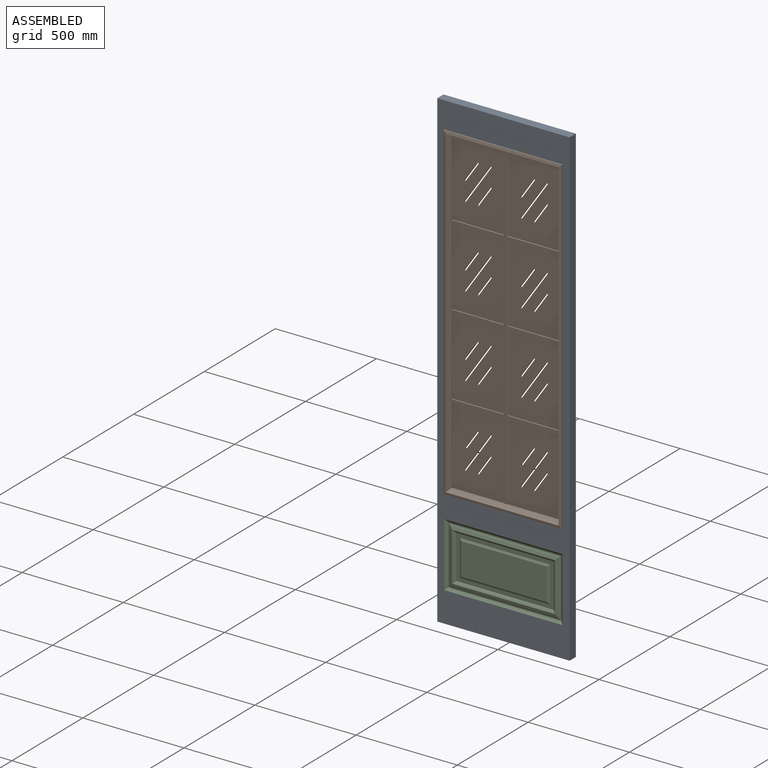
[diagram: assembled view]
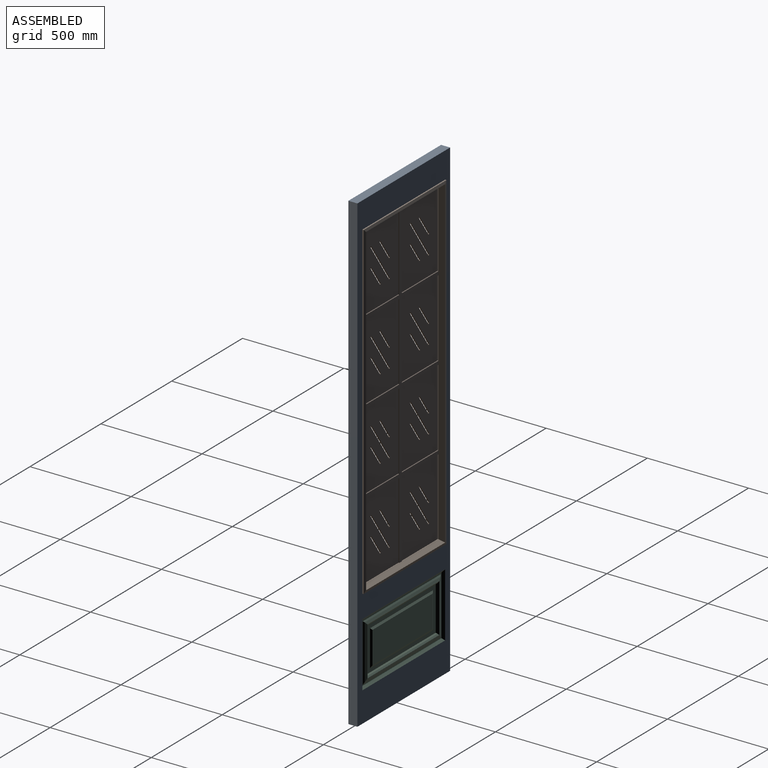
[diagram: assembled view, second angle]
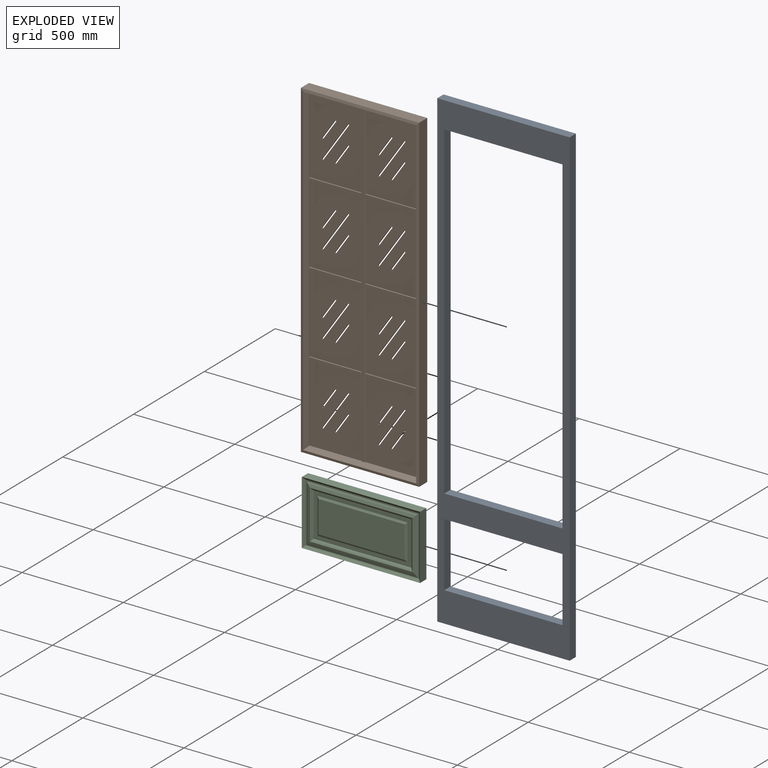
[diagram: exploded view]
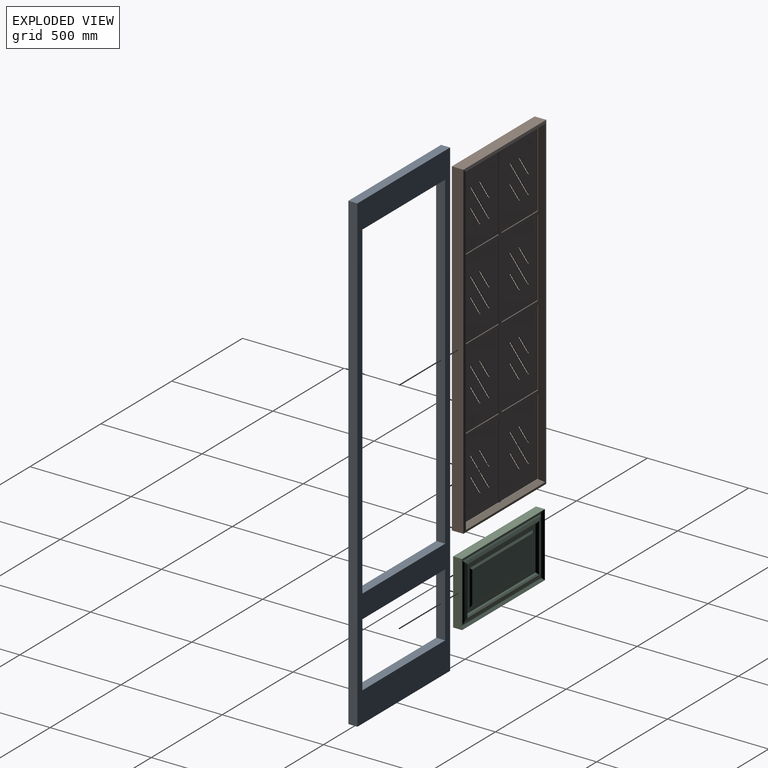
[diagram: exploded view, second angle]
ASSEMBLY  parts=3 mates=2
PART A: 14 faces, bbox 654.1x44.5x2336.8 mm
  f0: plane 2336.8x44.45mm, normal (1,0,0), area 103870.8mm2, adj f1,f11,f12,f13
  f1: plane 654.05x44.45mm, normal (0,0,1), area 29072.5mm2, adj f0,f10,f11,f12
  f2: plane 584.2x44.45mm, normal (0,0,1), area 25967.7mm2, adj f3,f8,f11,f12
  f3: plane 317.5x44.45mm, normal (1,0,0), area 14112.9mm2, adj f2,f4,f11,f12
  f4: plane 584.2x44.45mm, normal (0,0,-1), area 25967.7mm2, adj f3,f8,f11,f12
  f5: plane 584.2x44.45mm, normal (0,0,1), area 25967.7mm2, adj f6,f9,f11,f12
  f6: plane 1625.6x44.45mm, normal (1,0,0), area 72257.9mm2, adj f5,f7,f11,f12
  f7: plane 584.2x44.45mm, normal (0,0,-1), area 25967.7mm2, adj f6,f9,f11,f12
  f8: plane 317.5x44.45mm, normal (-1,0,0), area 14112.9mm2, adj f2,f4,f11,f12
  f9: plane 1625.6x44.45mm, normal (-1,0,0), area 72257.9mm2, adj f5,f7,f11,f12
  f10: plane 2336.8x44.45mm, normal (-1,0,0), area 103870.8mm2, adj f1,f11,f12,f13
  f11: plane 2336.8x654.05mm, normal (0,-1,0), area 393225mm2, adj f0,f1,f2,f3,f4,f5,f6,f7
  f12: plane 2336.8x654.05mm, normal (0,1,0), area 393225mm2, adj f0,f1,f2,f3,f4,f5,f6,f7
  f13: plane 654.05x44.45mm, normal (0,0,-1), area 29072.5mm2, adj f0,f10,f11,f12
PART B: 198 faces, bbox 584.2x63.5x1625.6 mm
  f0: plane 378.32x255.83mm, normal (0,-1,0), area 93800.9mm2, adj f17,f18,f90,f95,f138,f139,f140,f141
  f1: plane 378.32x255.56mm, normal (0,-1,0), area 93671.5mm2, adj f16,f19,f93,f99,f162,f163,f164,f165
  f2: plane 376.48x255.42mm, normal (0,1,0), area 93151.6mm2, adj f20,f22,f46,f100,f174,f175,f176,f177
  f3: plane 376.48x255.83mm, normal (0,1,0), area 93331.9mm2, adj f21,f23,f64,f97,f186,f187,f188,f189
  f4: plane 378.32x255.83mm, normal (0,-1,0), area 93800.9mm2, adj f26,f28,f81,f91,f126,f127,f128,f129
  f5: plane 376.48x255.83mm, normal (0,-1,0), area 93331.9mm2, adj f27,f29,f44,f94,f186,f187,f188,f189
  f6: plane 378.32x255.69mm, normal (0,-1,0), area 93723.4mm2, adj f24,f30,f78,f92,f150,f151,f152,f153
  f7: plane 376.48x255.42mm, normal (0,-1,0), area 93151.6mm2, adj f25,f31,f48,f98,f174,f175,f176,f177
  f8: plane 378.32x255.56mm, normal (0,1,0), area 93671.5mm2, adj f32,f36,f88,f101,f162,f163,f164,f165
  f9: plane 378.32x255.69mm, normal (0,1,0), area 93723.4mm2, adj f33,f37,f85,f89,f150,f151,f152,f153
  f10: plane 378.32x255.83mm, normal (0,1,0), area 93800.9mm2, adj f34,f38,f87,f96,f138,f139,f140,f141
  f11: plane 378.32x255.83mm, normal (0,1,0), area 93800.9mm2, adj f35,f39,f83,f86,f126,f127,f128,f129
  f12: plane 376.48x255.83mm, normal (0,1,0), area 93306.4mm2, adj f40,f42,f47,f84,f102,f103,f104,f105
  f13: plane 376.48x255.83mm, normal (0,1,0), area 93331.9mm2, adj f41,f43,f71,f82,f114,f115,f116,f117
  f14: plane 376.48x255.83mm, normal (0,-1,0), area 93331.9mm2, adj f45,f50,f75,f80,f114,f115,f116,f117
  f15: plane 376.48x255.83mm, normal (0,-1,0), area 93306.4mm2, adj f49,f51,f76,f79,f102,f103,f104,f105
  f16: plane 381.98x3.18mm, normal (1,0,0), area 1207mm2, adj f1,f68,f93,f99
  f17: plane 381.98x3.18mm, normal (-1,0,0), area 1207mm2, adj f0,f70,f90,f95
  f18: plane 381.98x3.18mm, normal (0.87,-0.5,0), area 1393.7mm2, adj f0,f77,f90,f95
  f19: plane 381.98x3.18mm, normal (-0.87,-0.5,0), area 1393.7mm2, adj f1,f77,f93,f99
  f20: plane 378.32x3.18mm, normal (1,0,0), area 1198.2mm2, adj f2,f46,f67,f100
  f21: plane 378.32x3.18mm, normal (-1,0,0), area 1198.2mm2, adj f3,f64,f69,f97
  f22: plane 378.32x3.18mm, normal (-0.87,0.5,0), area 1383.6mm2, adj f2,f46,f74,f100
  f23: plane 378.32x3.18mm, normal (0.87,0.5,0), area 1383.6mm2, adj f3,f64,f74,f97
  f24: plane 381.98x3.18mm, normal (1,0,0), area 1207mm2, adj f6,f68,f78,f92
  f25: plane 378.32x3.18mm, normal (1,0,0), area 1198.2mm2, adj f7,f48,f68,f98
  f26: plane 381.98x3.18mm, normal (-1,0,0), area 1207mm2, adj f4,f70,f81,f91
  f27: plane 378.32x3.18mm, normal (-1,0,0), area 1198.2mm2, adj f5,f44,f70,f94
  f28: plane 381.98x3.18mm, normal (0.87,-0.5,0), area 1393.7mm2, adj f4,f77,f81,f91
  f29: plane 378.32x3.18mm, normal (0.87,-0.5,0), area 1383.6mm2, adj f5,f44,f77,f94
  f30: plane 381.98x3.18mm, normal (-0.87,-0.5,0), area 1393.7mm2, adj f6,f77,f78,f92
  f31: plane 378.32x3.18mm, normal (-0.87,-0.5,0), area 1383.6mm2, adj f7,f48,f77,f98
  f32: plane 381.98x3.18mm, normal (1,0,0), area 1207mm2, adj f8,f67,f88,f101
  f33: plane 381.98x3.18mm, normal (1,0,0), area 1207mm2, adj f9,f67,f85,f89
  f34: plane 381.98x3.18mm, normal (-1,0,0), area 1207mm2, adj f10,f69,f87,f96
  f35: plane 381.98x3.18mm, normal (-1,0,0), area 1207mm2, adj f11,f69,f83,f86
  f36: plane 381.98x3.18mm, normal (-0.87,0.5,0), area 1393.7mm2, adj f8,f74,f88,f101
  f37: plane 381.98x3.18mm, normal (-0.87,0.5,0), area 1393.7mm2, adj f9,f74,f85,f89
  f38: plane 381.98x3.18mm, normal (0.87,0.5,0), area 1393.7mm2, adj f10,f74,f87,f96
  f39: plane 381.98x3.18mm, normal (0.87,0.5,0), area 1393.7mm2, adj f11,f74,f83,f86
  f40: plane 378.32x3.18mm, normal (1,0,0), area 1198.2mm2, adj f12,f47,f67,f84
  f41: plane 378.32x3.18mm, normal (-1,0,0), area 1198.2mm2, adj f13,f69,f71,f82
  f42: plane 378.32x3.18mm, normal (-0.87,0.5,0), area 1383.6mm2, adj f12,f47,f74,f84
  f43: plane 378.32x3.18mm, normal (0.87,0.5,0), area 1383.6mm2, adj f13,f71,f74,f82
  f44: plane 257.67x3.18mm, normal (0,0,-1), area 815.2mm2, adj f5,f27,f29,f65
  f45: plane 257.67x3.18mm, normal (0,0,1), area 815.2mm2, adj f14,f50,f73,f75
  f46: plane 257.12x3.18mm, normal (0,0,-1), area 813.5mm2, adj f2,f20,f22,f66
  f47: plane 257.66x3.18mm, normal (0,0,1), area 815.2mm2, adj f12,f40,f42,f72
  f48: plane 257.12x3.18mm, normal (0,0,-1), area 813.5mm2, adj f7,f25,f31,f65
  f49: plane 378.32x3.18mm, normal (1,0,0), area 1198.2mm2, adj f15,f51,f68,f79
  f50: plane 378.32x3.18mm, normal (-1,0,0), area 1198.2mm2, adj f14,f45,f70,f80
  f51: plane 257.66x3.18mm, normal (0,0,1), area 815.2mm2, adj f15,f49,f73,f76
  f52: plane 584.2x57.15mm, normal (0,0,1), area 33387mm2, adj f53,f54,f55,f58
  f53: plane 584.2x12.7mm, normal (0,-0.97,0.24), area 7481.4mm2, adj f52,f56,f59,f65
  f54: plane 584.2x12.7mm, normal (0,0.97,0.24), area 7481.4mm2, adj f52,f57,f60,f66
  f55: plane 1625.6x57.15mm, normal (-1,0,0), area 92903mm2, adj f52,f56,f57,f61
  f56: plane 1625.6x12.7mm, normal (-0.24,-0.97,0), area 21114.2mm2, adj f53,f55,f62,f68
  f57: plane 1625.6x12.7mm, normal (-0.24,0.97,0), area 21114.2mm2, adj f54,f55,f63,f67
  f58: plane 1625.6x57.15mm, normal (1,0,0), area 92903mm2, adj f52,f59,f60,f61
  f59: plane 1625.6x12.7mm, normal (0.24,-0.97,0), area 21114.2mm2, adj f53,f58,f62,f70
  f60: plane 1625.6x12.7mm, normal (0.24,0.97,0), area 21114.2mm2, adj f54,f58,f63,f69
  f61: plane 584.2x57.15mm, normal (0,0,-1), area 33387mm2, adj f55,f58,f62,f63
  f62: plane 584.2x12.7mm, normal (0,-0.97,-0.24), area 7481.4mm2, adj f56,f59,f61,f73
  f63: plane 584.2x12.7mm, normal (0,0.97,-0.24), area 7481.4mm2, adj f57,f60,f61,f72
  f64: plane 257.67x3.18mm, normal (0,0,-1), area 815.2mm2, adj f3,f21,f23,f66
  f65: plane 558.8x25.4mm, normal (0,-0.45,-0.89), area 15508.2mm2, adj f44,f48,f53,f68,f70,f77
  f66: plane 558.8x25.4mm, normal (0,0.45,-0.89), area 15508.2mm2, adj f46,f54,f64,f67,f69,f74
  f67: plane 1600.2x25.4mm, normal (0.89,0.45,0), area 45081.9mm2, adj f20,f32,f33,f40,f57,f66,f72,f74
  f68: plane 1600.2x25.4mm, normal (0.89,-0.45,0), area 45081.9mm2, adj f16,f24,f25,f49,f56,f65,f73,f77
  f69: plane 1600.2x25.4mm, normal (-0.89,0.45,0), area 45081.9mm2, adj f21,f34,f35,f41,f60,f66,f72,f74
  f70: plane 1600.2x25.4mm, normal (-0.89,-0.45,0), area 45081.9mm2, adj f17,f26,f27,f50,f59,f65,f73,f77
  f71: plane 257.67x3.18mm, normal (0,0,1), area 815.2mm2, adj f13,f41,f43,f72
  f72: plane 558.8x25.4mm, normal (0,0.45,0.89), area 15508.2mm2, adj f47,f63,f67,f69,f71,f74
  f73: plane 558.8x25.4mm, normal (0,-0.45,0.89), area 15508.2mm2, adj f45,f51,f62,f68,f70,f77
  f74: plane 1574.8x533.4mm, normal (0,1,0), area 56801mm2, adj f22,f23,f36,f37,f38,f39,f42,f43
  f75: plane 378.32x3.18mm, normal (0.87,-0.5,0), area 1383.6mm2, adj f14,f45,f77,f80
  f76: plane 378.32x3.18mm, normal (-0.87,-0.5,0), area 1383.6mm2, adj f15,f51,f77,f79
  f77: plane 1574.8x533.4mm, normal (0,-1,0), area 56801mm2, adj f18,f19,f28,f29,f30,f31,f65,f68
  f78: plane 257.53x3.18mm, normal (0,-0.5,0.87), area 940.8mm2, adj f6,f24,f30,f77
  f79: plane 257.53x3.18mm, normal (0,-0.5,-0.87), area 940.8mm2, adj f15,f49,f76,f77
  f80: plane 257.67x3.18mm, normal (0,-0.5,-0.87), area 941.3mm2, adj f14,f50,f75,f77
  f81: plane 257.67x3.18mm, normal (0,-0.5,0.87), area 941.3mm2, adj f4,f26,f28,f77
  f82: plane 257.67x3.18mm, normal (0,0.5,-0.87), area 941.3mm2, adj f13,f41,f43,f74
  f83: plane 257.67x3.18mm, normal (0,0.5,0.87), area 941.3mm2, adj f11,f35,f39,f74
  f84: plane 257.53x3.18mm, normal (0,0.5,-0.87), area 940.8mm2, adj f12,f40,f42,f74
  f85: plane 257.53x3.18mm, normal (0,0.5,0.87), area 940.8mm2, adj f9,f33,f37,f74
  f86: plane 257.67x3.18mm, normal (0,0.5,-0.87), area 941.3mm2, adj f11,f35,f39,f74
  f87: plane 257.67x3.18mm, normal (0,0.5,0.87), area 941.3mm2, adj f10,f34,f38,f74
  f88: plane 257.39x3.18mm, normal (0,0.5,0.87), area 940.3mm2, adj f8,f32,f36,f74
  f89: plane 257.4x3.18mm, normal (0,0.5,-0.87), area 940.3mm2, adj f9,f33,f37,f74
  f90: plane 257.67x3.18mm, normal (0,-0.5,0.87), area 941.3mm2, adj f0,f17,f18,f77
  f91: plane 257.67x3.18mm, normal (0,-0.5,-0.87), area 941.3mm2, adj f4,f26,f28,f77
  f92: plane 257.4x3.18mm, normal (0,-0.5,-0.87), area 940.3mm2, adj f6,f24,f30,f77
  f93: plane 257.39x3.18mm, normal (0,-0.5,0.87), area 940.3mm2, adj f1,f16,f19,f77
  f94: plane 257.67x3.18mm, normal (0,-0.5,0.87), area 941.3mm2, adj f5,f27,f29,f77
  f95: plane 257.67x3.18mm, normal (0,-0.5,-0.87), area 941.3mm2, adj f0,f17,f18,f77
  f96: plane 257.67x3.18mm, normal (0,0.5,-0.87), area 941.3mm2, adj f10,f34,f38,f74
  f97: plane 257.67x3.18mm, normal (0,0.5,0.87), area 941.3mm2, adj f3,f21,f23,f74
  f98: plane 257.25x3.18mm, normal (0,-0.5,0.87), area 939.8mm2, adj f7,f25,f31,f77
  f99: plane 257.26x3.18mm, normal (0,-0.5,-0.87), area 939.8mm2, adj f1,f16,f19,f77
  f100: plane 257.25x3.18mm, normal (0,0.5,0.87), area 939.8mm2, adj f2,f20,f22,f74
  f101: plane 257.26x3.18mm, normal (0,0.5,-0.87), area 939.8mm2, adj f8,f32,f36,f74
  f102: cylinder r=3.17mm len=6.35mm, axis (0,-1,0), area 63.3mm2, adj f12,f15,f103,f105
  f103: plane 94.12x63.93mm, normal (-0.83,0,0.56), area 722.5mm2, adj f12,f15,f102,f104
  f104: cylinder r=3.17mm len=6.35mm, axis (0,-1,0), area 63.3mm2, adj f12,f15,f103,f105
  f105: plane 94.12x63.93mm, normal (0.83,0,-0.56), area 722.5mm2, adj f12,f15,f102,f104
  f106: cylinder r=3.17mm len=6.35mm, axis (0,-1,0), area 63.3mm2, adj f12,f15,f107,f109
  f107: plane 94.12x63.93mm, normal (-0.83,0,0.56), area 722.5mm2, adj f12,f15,f106,f108
  f108: cylinder r=3.17mm len=6.35mm, axis (0,-1,0), area 63.3mm2, adj f12,f15,f107,f109
  f109: plane 94.12x63.93mm, normal (0.83,0,-0.56), area 722.5mm2, adj f12,f15,f106,f108
  f110: cylinder r=3.17mm len=6.35mm, axis (0,-1,0), area 63.3mm2, adj f12,f15,f111,f113
  f111: plane 188.24x127.85mm, normal (-0.83,0,0.56), area 1445mm2, adj f12,f15,f110,f112
  f112: cylinder r=3.17mm len=6.35mm, axis (0,-1,0), area 63.3mm2, adj f12,f15,f111,f113
  f113: plane 188.24x127.85mm, normal (0.83,0,-0.56), area 1445mm2, adj f12,f15,f110,f112
  f114: cylinder r=3.17mm len=6.35mm, axis (0,-1,0), area 63.3mm2, adj f13,f14,f115,f117
  f115: plane 188.24x127.85mm, normal (0.83,0,-0.56), area 1445mm2, adj f13,f14,f114,f116
  f116: cylinder r=3.17mm len=6.35mm, axis (0,-1,0), area 63.3mm2, adj f13,f14,f115,f117
  f117: plane 188.24x127.85mm, normal (-0.83,0,0.56), area 1445mm2, adj f13,f14,f114,f116
  f118: cylinder r=3.17mm len=6.35mm, axis (0,-1,0), area 63.3mm2, adj f13,f14,f119,f121
  f119: plane 94.12x63.93mm, normal (0.83,0,-0.56), area 722.5mm2, adj f13,f14,f118,f120
  f120: cylinder r=3.17mm len=6.35mm, axis (0,-1,0), area 63.3mm2, adj f13,f14,f119,f121
  f121: plane 94.12x63.93mm, normal (-0.83,0,0.56), area 722.5mm2, adj f13,f14,f118,f120
  f122: cylinder r=3.17mm len=6.35mm, axis (0,-1,0), area 63.3mm2, adj f13,f14,f123,f125
  f123: plane 94.12x63.93mm, normal (0.83,0,-0.56), area 722.5mm2, adj f13,f14,f122,f124
  f124: cylinder r=3.17mm len=6.35mm, axis (0,-1,0), area 63.3mm2, adj f13,f14,f123,f125
  f125: plane 94.12x63.93mm, normal (-0.83,0,0.56), area 722.5mm2, adj f13,f14,f122,f124
  f126: cylinder r=3.17mm len=6.35mm, axis (0,-1,0), area 63.3mm2, adj f4,f11,f127,f129
  f127: plane 94.12x63.93mm, normal (0.83,0,-0.56), area 722.5mm2, adj f4,f11,f126,f128
  f128: cylinder r=3.17mm len=6.35mm, axis (0,-1,0), area 63.3mm2, adj f4,f11,f127,f129
  f129: plane 94.12x63.93mm, normal (-0.83,0,0.56), area 722.5mm2, adj f4,f11,f126,f128
  f130: cylinder r=3.17mm len=6.35mm, axis (0,-1,0), area 63.3mm2, adj f4,f11,f131,f133
  f131: plane 94.12x63.93mm, normal (0.83,0,-0.56), area 722.5mm2, adj f4,f11,f130,f132
  f132: cylinder r=3.17mm len=6.35mm, axis (0,-1,0), area 63.3mm2, adj f4,f11,f131,f133
  f133: plane 94.12x63.93mm, normal (-0.83,0,0.56), area 722.5mm2, adj f4,f11,f130,f132
  f134: cylinder r=3.17mm len=6.35mm, axis (0,-1,0), area 63.3mm2, adj f4,f11,f135,f137
  f135: plane 188.24x127.85mm, normal (0.83,0,-0.56), area 1445mm2, adj f4,f11,f134,f136
  f136: cylinder r=3.17mm len=6.35mm, axis (0,-1,0), area 63.3mm2, adj f4,f11,f135,f137
  f137: plane 188.24x127.85mm, normal (-0.83,0,0.56), area 1445mm2, adj f4,f11,f134,f136
  f138: cylinder r=3.17mm len=6.35mm, axis (0,-1,0), area 63.3mm2, adj f0,f10,f139,f141
  f139: plane 94.12x63.93mm, normal (0.83,0,-0.56), area 722.5mm2, adj f0,f10,f138,f140
  f140: cylinder r=3.17mm len=6.35mm, axis (0,-1,0), area 63.3mm2, adj f0,f10,f139,f141
  f141: plane 94.12x63.93mm, normal (-0.83,0,0.56), area 722.5mm2, adj f0,f10,f138,f140
  f142: cylinder r=3.17mm len=6.35mm, axis (0,-1,0), area 63.3mm2, adj f0,f10,f143,f145
  f143: plane 94.12x63.93mm, normal (0.83,0,-0.56), area 722.5mm2, adj f0,f10,f142,f144
  f144: cylinder r=3.17mm len=6.35mm, axis (0,-1,0), area 63.3mm2, adj f0,f10,f143,f145
  f145: plane 94.12x63.93mm, normal (-0.83,0,0.56), area 722.5mm2, adj f0,f10,f142,f144
  f146: cylinder r=3.17mm len=6.35mm, axis (0,-1,0), area 63.3mm2, adj f0,f10,f147,f149
  f147: plane 188.24x127.85mm, normal (0.83,0,-0.56), area 1445mm2, adj f0,f10,f146,f148
  f148: cylinder r=3.17mm len=6.35mm, axis (0,-1,0), area 63.3mm2, adj f0,f10,f147,f149
  f149: plane 188.24x127.85mm, normal (-0.83,0,0.56), area 1445mm2, adj f0,f10,f146,f148
  f150: cylinder r=3.17mm len=6.35mm, axis (0,-1,0), area 63.3mm2, adj f6,f9,f151,f153
  f151: plane 94.12x63.93mm, normal (0.83,0,-0.56), area 722.5mm2, adj f6,f9,f150,f152
  f152: cylinder r=3.17mm len=6.35mm, axis (0,-1,0), area 63.3mm2, adj f6,f9,f151,f153
  f153: plane 94.12x63.93mm, normal (-0.83,0,0.56), area 722.5mm2, adj f6,f9,f150,f152
  f154: cylinder r=3.17mm len=6.35mm, axis (0,-1,0), area 63.3mm2, adj f6,f9,f155,f157
  f155: plane 94.12x63.93mm, normal (0.83,0,-0.56), area 722.5mm2, adj f6,f9,f154,f156
  f156: cylinder r=3.17mm len=6.35mm, axis (0,-1,0), area 63.3mm2, adj f6,f9,f155,f157
  f157: plane 94.12x63.93mm, normal (-0.83,0,0.56), area 722.5mm2, adj f6,f9,f154,f156
  f158: cylinder r=3.17mm len=6.35mm, axis (0,-1,0), area 63.3mm2, adj f6,f9,f159,f161
  f159: plane 188.24x127.85mm, normal (0.83,0,-0.56), area 1445mm2, adj f6,f9,f158,f160
  f160: cylinder r=3.17mm len=6.35mm, axis (0,-1,0), area 63.3mm2, adj f6,f9,f159,f161
  f161: plane 188.24x127.85mm, normal (-0.83,0,0.56), area 1445mm2, adj f6,f9,f158,f160
  f162: cylinder r=3.17mm len=6.35mm, axis (0,-1,0), area 63.3mm2, adj f1,f8,f163,f165
  f163: plane 94.12x63.93mm, normal (0.83,0,-0.56), area 722.5mm2, adj f1,f8,f162,f164
  f164: cylinder r=3.17mm len=6.35mm, axis (0,-1,0), area 63.3mm2, adj f1,f8,f163,f165
  f165: plane 94.12x63.93mm, normal (-0.83,0,0.56), area 722.5mm2, adj f1,f8,f162,f164
  f166: cylinder r=3.17mm len=6.35mm, axis (0,-1,0), area 63.3mm2, adj f1,f8,f167,f169
  f167: plane 94.12x63.93mm, normal (0.83,0,-0.56), area 722.5mm2, adj f1,f8,f166,f168
  f168: cylinder r=3.17mm len=6.35mm, axis (0,-1,0), area 63.3mm2, adj f1,f8,f167,f169
  f169: plane 94.12x63.93mm, normal (-0.83,0,0.56), area 722.5mm2, adj f1,f8,f166,f168
  f170: cylinder r=3.17mm len=6.35mm, axis (0,-1,0), area 63.3mm2, adj f1,f8,f171,f173
  f171: plane 188.24x127.85mm, normal (0.83,0,-0.56), area 1445mm2, adj f1,f8,f170,f172
  f172: cylinder r=3.17mm len=6.35mm, axis (0,-1,0), area 63.3mm2, adj f1,f8,f171,f173
  f173: plane 188.24x127.85mm, normal (-0.83,0,0.56), area 1445mm2, adj f1,f8,f170,f172
  f174: cylinder r=3.17mm len=6.35mm, axis (0,-1,0), area 63.3mm2, adj f2,f7,f175,f177
  f175: plane 188.24x127.85mm, normal (0.83,0,-0.56), area 1445mm2, adj f2,f7,f174,f176
  f176: cylinder r=3.17mm len=6.35mm, axis (0,-1,0), area 63.3mm2, adj f2,f7,f175,f177
  f177: plane 188.24x127.85mm, normal (-0.83,0,0.56), area 1445mm2, adj f2,f7,f174,f176
  f178: cylinder r=3.17mm len=6.35mm, axis (0,-1,0), area 63.3mm2, adj f2,f7,f179,f181
  f179: plane 94.12x63.93mm, normal (0.83,0,-0.56), area 722.5mm2, adj f2,f7,f178,f180
  f180: cylinder r=3.17mm len=6.35mm, axis (0,-1,0), area 63.3mm2, adj f2,f7,f179,f181
  f181: plane 94.12x63.93mm, normal (-0.83,0,0.56), area 722.5mm2, adj f2,f7,f178,f180
  f182: cylinder r=3.17mm len=6.35mm, axis (0,-1,0), area 63.3mm2, adj f2,f7,f183,f185
  f183: plane 94.12x63.93mm, normal (0.83,0,-0.56), area 722.5mm2, adj f2,f7,f182,f184
  f184: cylinder r=3.17mm len=6.35mm, axis (0,-1,0), area 63.3mm2, adj f2,f7,f183,f185
  f185: plane 94.12x63.93mm, normal (-0.83,0,0.56), area 722.5mm2, adj f2,f7,f182,f184
  f186: cylinder r=3.17mm len=6.35mm, axis (0,-1,0), area 63.3mm2, adj f3,f5,f187,f189
  f187: plane 188.24x127.85mm, normal (0.83,0,-0.56), area 1445mm2, adj f3,f5,f186,f188
  f188: cylinder r=3.17mm len=6.35mm, axis (0,-1,0), area 63.3mm2, adj f3,f5,f187,f189
  f189: plane 188.24x127.85mm, normal (-0.83,0,0.56), area 1445mm2, adj f3,f5,f186,f188
  f190: cylinder r=3.17mm len=6.35mm, axis (0,-1,0), area 63.3mm2, adj f3,f5,f191,f193
  f191: plane 94.12x63.93mm, normal (0.83,0,-0.56), area 722.5mm2, adj f3,f5,f190,f192
  f192: cylinder r=3.17mm len=6.35mm, axis (0,-1,0), area 63.3mm2, adj f3,f5,f191,f193
  f193: plane 94.12x63.93mm, normal (-0.83,0,0.56), area 722.5mm2, adj f3,f5,f190,f192
  f194: cylinder r=3.17mm len=6.35mm, axis (0,-1,0), area 63.3mm2, adj f3,f5,f195,f197
  f195: plane 94.12x63.93mm, normal (0.83,0,-0.56), area 722.5mm2, adj f3,f5,f194,f196
  f196: cylinder r=3.17mm len=6.35mm, axis (0,-1,0), area 63.3mm2, adj f3,f5,f195,f197
  f197: plane 94.12x63.93mm, normal (-0.83,0,0.56), area 722.5mm2, adj f3,f5,f194,f196
PART C: 64 faces, bbox 584.2x44.5x317.5 mm
  f0: plane 482.75x216.05mm, normal (0,-1,0), area 25125.4mm2, adj f3,f5,f7,f8,f55,f57,f58,f61
  f1: plane 482.75x216.05mm, normal (0,1,0), area 25125.4mm2, adj f2,f4,f6,f9,f54,f56,f59,f60
  f2: plane 225.65x5.03mm, normal (0.72,0.69,0), area 1535.5mm2, adj f1,f4,f9,f13
  f3: plane 225.65x5.03mm, normal (0.72,-0.69,0), area 1535.5mm2, adj f0,f5,f8,f12
  f4: plane 492.35x5.03mm, normal (0,0.69,-0.72), area 3389.8mm2, adj f1,f2,f6,f11
  f5: plane 492.35x5.03mm, normal (0,-0.69,-0.72), area 3389.8mm2, adj f0,f3,f7,f10
  f6: plane 225.65x5.03mm, normal (-0.72,0.69,0), area 1535.5mm2, adj f1,f4,f9,f16
  f7: plane 225.65x5.03mm, normal (-0.72,-0.69,0), area 1535.5mm2, adj f0,f5,f8,f17
  f8: plane 492.35x5.03mm, normal (0,-0.69,0.72), area 3389.8mm2, adj f0,f3,f7,f15
  f9: plane 492.35x5.03mm, normal (0,0.69,0.72), area 3389.8mm2, adj f1,f2,f6,f14
  f10: plane 506.98x7.32mm, normal (0,-0.84,-0.54), area 4344.3mm2, adj f5,f12,f17,f23
  f11: plane 506.98x7.32mm, normal (0,0.84,-0.54), area 4344.3mm2, adj f4,f13,f16,f22
  f12: plane 240.28x7.32mm, normal (0.54,-0.84,0), area 2025.5mm2, adj f3,f10,f15,f19
  f13: plane 240.28x7.32mm, normal (0.54,0.84,0), area 2025.5mm2, adj f2,f11,f14,f18
  f14: plane 506.98x7.32mm, normal (0,0.84,0.54), area 4344.3mm2, adj f9,f13,f16,f21
  f15: plane 506.98x7.32mm, normal (0,-0.84,0.54), area 4344.3mm2, adj f8,f12,f17,f20
  f16: plane 240.28x7.32mm, normal (-0.54,0.84,0), area 2025.5mm2, adj f6,f11,f14,f25
  f17: plane 240.28x7.32mm, normal (-0.54,-0.84,0), area 2025.5mm2, adj f7,f10,f15,f24
  f18: plane 267.03x13.37mm, normal (-0.3,0.95,0), area 3560.7mm2, adj f13,f21,f22,f27
  f19: plane 267.03x13.37mm, normal (-0.3,-0.95,0), area 3560.7mm2, adj f12,f20,f23,f26
  f20: plane 533.73x13.37mm, normal (0,-0.95,-0.3), area 7304.5mm2, adj f15,f19,f24,f31
  f21: plane 533.73x13.37mm, normal (0,0.95,-0.3), area 7304.5mm2, adj f14,f18,f25,f30
  f22: plane 533.73x13.37mm, normal (0,0.95,0.3), area 7304.5mm2, adj f11,f18,f25,f29
  f23: plane 533.73x13.37mm, normal (0,-0.95,0.3), area 7304.5mm2, adj f10,f19,f24,f28
  f24: plane 267.03x13.37mm, normal (0.3,-0.95,0), area 3560.7mm2, adj f17,f20,f23,f33
  f25: plane 267.03x13.37mm, normal (0.3,0.95,0), area 3560.7mm2, adj f16,f21,f22,f32
  f26: plane 283.74x8.36mm, normal (-0.45,-0.89,0), area 2580.8mm2, adj f19,f28,f31,f35
  f27: plane 283.74x8.36mm, normal (-0.45,0.89,0), area 2580.8mm2, adj f18,f29,f30,f34
  f28: plane 550.44x7.1mm, normal (0,-0.86,0.51), area 4482.5mm2, adj f23,f26,f33,f37
  f29: plane 550.44x7.1mm, normal (0,0.86,0.51), area 4482.5mm2, adj f22,f27,f32,f36
  f30: plane 550.44x9.62mm, normal (0,0.91,-0.4), area 5696.9mm2, adj f21,f27,f32,f39
  f31: plane 550.44x9.62mm, normal (0,-0.91,-0.4), area 5696.9mm2, adj f20,f26,f33,f38
  f32: plane 283.74x8.36mm, normal (0.45,0.89,0), area 2580.8mm2, adj f25,f29,f30,f41
  f33: plane 283.74x8.36mm, normal (0.45,-0.89,0), area 2580.8mm2, adj f24,f28,f31,f40
  f34: plane 293.34x4.8mm, normal (0.03,1,0), area 1385.9mm2, adj f27,f36,f39,f43
  f35: plane 293.34x4.8mm, normal (0.03,-1,0), area 1385.9mm2, adj f26,f37,f38,f44
  f36: plane 560.04x6.06mm, normal (0,1,-0.03), area 3365.3mm2, adj f29,f34,f41,f47
  f37: plane 560.04x6.06mm, normal (0,-1,-0.03), area 3365.3mm2, adj f28,f35,f40,f46
  f38: plane 560.04x3.54mm, normal (0,-1,0.04), area 1968.6mm2, adj f31,f35,f40,f52
  f39: plane 560.04x3.54mm, normal (0,1,0.04), area 1968.6mm2, adj f30,f34,f41,f53
  f40: plane 293.34x4.8mm, normal (-0.03,-1,0), area 1385.9mm2, adj f33,f37,f38,f49
  f41: plane 293.34x4.8mm, normal (-0.03,1,0), area 1385.9mm2, adj f32,f36,f39,f50
  f42: plane 317.5x44.45mm, normal (-1,0,0), area 14112.9mm2, adj f43,f44,f45,f51
  f43: plane 317.5x12.08mm, normal (0.63,0.78,0), area 4736.6mm2, adj f34,f42,f47,f53
  f44: plane 317.5x12.08mm, normal (0.63,-0.78,0), area 4736.6mm2, adj f35,f42,f46,f52
  f45: plane 584.2x44.45mm, normal (0,0,1), area 25967.7mm2, adj f42,f46,f47,f48
  f46: plane 584.2x12.08mm, normal (0,-0.78,-0.63), area 8872.7mm2, adj f37,f44,f45,f49
  f47: plane 584.2x12.08mm, normal (0,0.78,-0.63), area 8872.7mm2, adj f36,f43,f45,f50
  f48: plane 317.5x44.45mm, normal (1,0,0), area 14112.9mm2, adj f45,f49,f50,f51
  f49: plane 317.5x12.08mm, normal (-0.63,-0.78,0), area 4736.6mm2, adj f40,f46,f48,f52
  f50: plane 317.5x12.08mm, normal (-0.63,0.78,0), area 4736.6mm2, adj f41,f47,f48,f53
  f51: plane 584.2x44.45mm, normal (0,0,-1), area 25967.7mm2, adj f42,f48,f52,f53
  f52: plane 584.2x12.08mm, normal (0,-0.78,0.63), area 8872.7mm2, adj f38,f44,f49,f51
  f53: plane 584.2x12.08mm, normal (0,0.78,0.63), area 8872.7mm2, adj f39,f43,f50,f51
  f54: plane 444.73x9.61mm, normal (0,0.87,0.5), area 4828.8mm2, adj f1,f59,f60,f63
  f55: plane 444.73x9.61mm, normal (0,-0.87,0.5), area 4828.8mm2, adj f0,f58,f61,f62
  f56: plane 444.73x9.61mm, normal (0,0.87,-0.5), area 4828.8mm2, adj f1,f59,f60,f63
  f57: plane 444.73x9.61mm, normal (0,-0.87,-0.5), area 4828.8mm2, adj f0,f58,f61,f62
  f58: plane 178.03x9.61mm, normal (0.5,-0.87,0), area 1869mm2, adj f0,f55,f57,f62
  f59: plane 178.03x9.61mm, normal (0.5,0.87,0), area 1869mm2, adj f1,f54,f56,f63
  f60: plane 178.03x9.61mm, normal (-0.5,0.87,0), area 1869mm2, adj f1,f54,f56,f63
  f61: plane 178.03x9.61mm, normal (-0.5,-0.87,0), area 1869mm2, adj f0,f55,f57,f62
  f62: plane 425.5x158.8mm, normal (0,-1,0), area 67569.9mm2, adj f55,f57,f58,f61
  f63: plane 425.5x158.8mm, normal (0,1,0), area 67569.9mm2, adj f54,f56,f59,f60
PLACE A t=(-482.61,-462.84,546.02)mm
PLACE B t=(-482.61,-462.84,809.55)mm
PLACE C t=(-482.61,-462.84,-276.3)mm
MATE fastened A.f3 <-> C.f42  axis (1,0,0) through (-774.71,-462.84,-117.55)mm
MATE fastened B.f55 <-> A.f6  axis (-1,0,0) through (-774.71,-462.84,1622.35)mm
